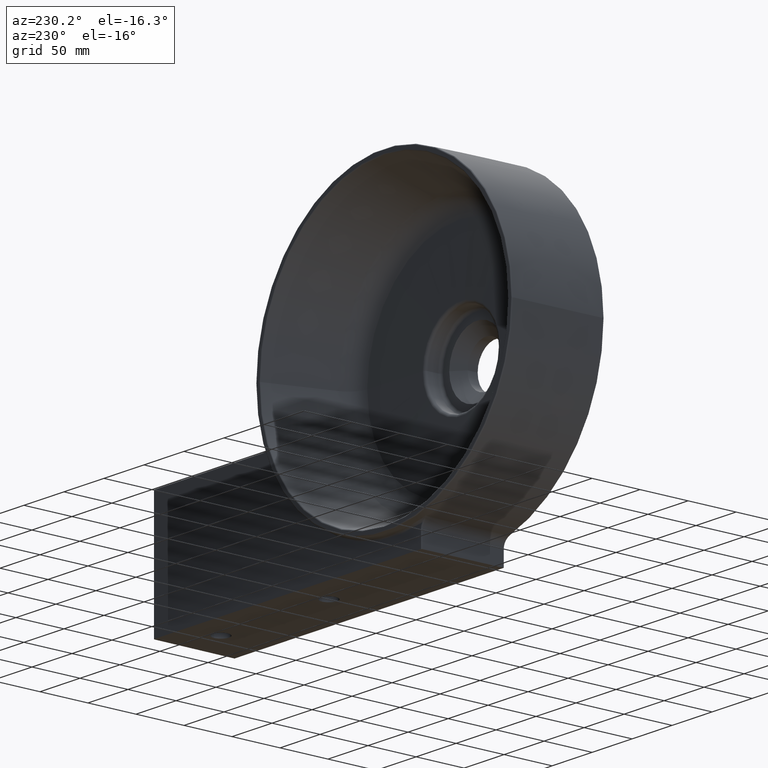
[diagram: clean part render]
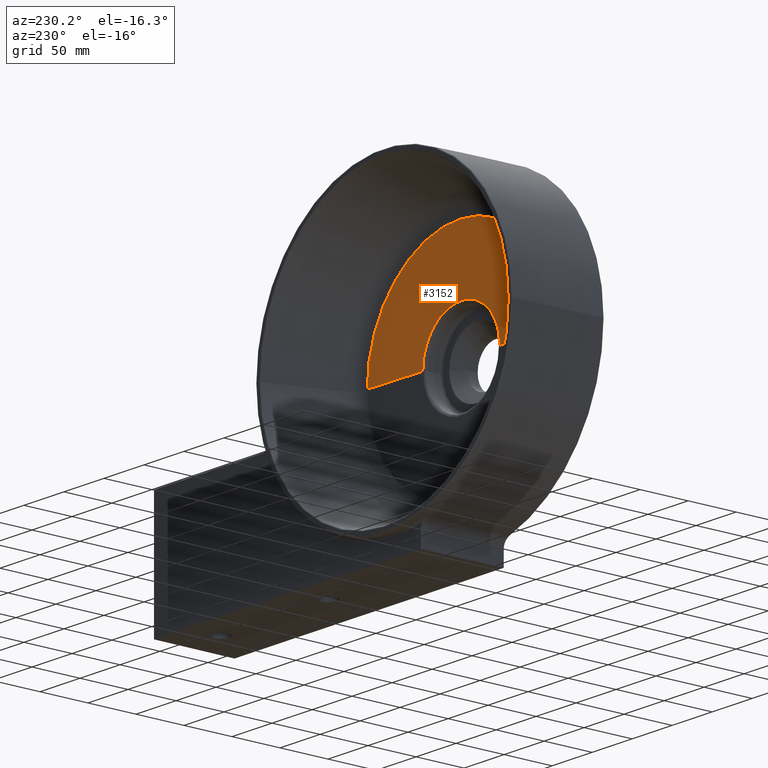
[diagram: same view with one face highlighted and labeled with its STEP entity id]
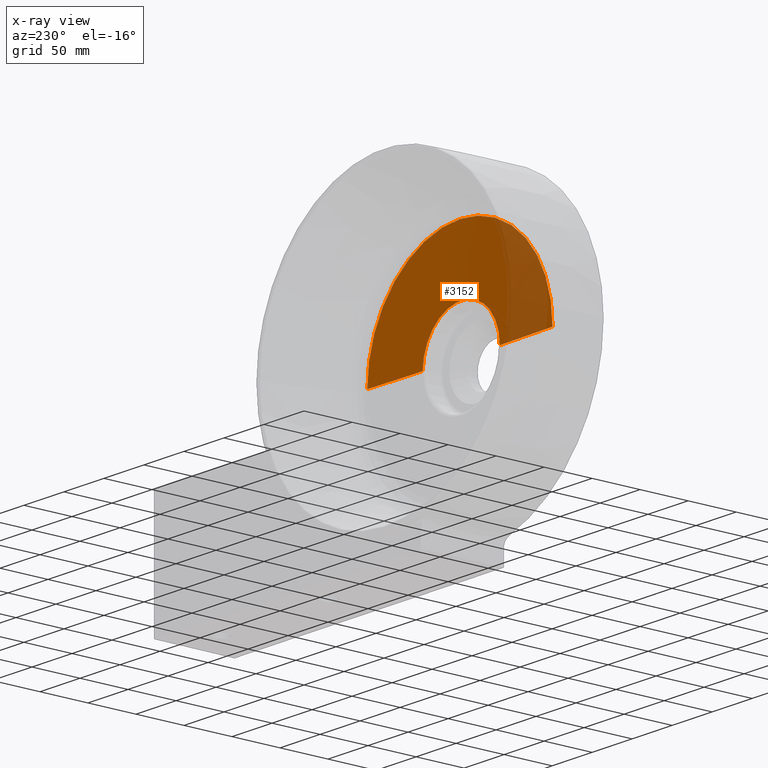
[diagram: x-ray of the same camera — body ghosted, the highlighted face saturated]
A machine part, auxiliary view. The second image highlights one B-rep face of the part: STEP entity #3152.
The next image is the same camera in x-ray: the body ghosted, the highlighted face saturated — about 24% of this face is hidden behind the body in this view.
In plain terms, the highlighted conical surface has half-angle 88.854 deg.
Its self-contained STEP definition (entity closure, byte-faithful):
#30 = CARTESIAN_POINT ( 'NONE',  ( -48.16836135518230577, 36.26575789991628085, 0.0000000000000000000 ) ) ;
#205 = ORIENTED_EDGE ( 'NONE', *, *, #597, .F. ) ;
#294 = EDGE_CURVE ( 'NONE', #2341, #2229, #3728, .T. ) ;
#323 = DIRECTION ( 'NONE',  ( -1.214623636765614367E-16, 1.000000000000000000, -0.0000000000000000000 ) ) ;
#355 = DIRECTION ( 'NONE',  ( 0.9998000599800070942, 0.01999600119960008235, 1.224401943241847489E-16 ) ) ;
#494 = CONICAL_SURFACE ( 'NONE', #1221, 48.16836135518231288, 1.550798992821746269 ) ;
#597 = EDGE_CURVE ( 'NONE', #630, #2229, #2873, .T. ) ;
#630 = VERTEX_POINT ( 'NONE', #2231 ) ;
#678 = ORIENTED_EDGE ( 'NONE', *, *, #3487, .F. ) ;
#750 = AXIS2_PLACEMENT_3D ( 'NONE', #1663, #323, #2554 ) ;
#999 = AXIS2_PLACEMENT_3D ( 'NONE', #1013, #2274, #1967 ) ;
#1013 = CARTESIAN_POINT ( 'NONE',  ( 9.684624439845843926E-15, 37.61758012698156506, 0.0000000000000000000 ) ) ;
#1048 = DIRECTION ( 'NONE',  ( -1.214623636765614367E-16, 1.000000000000000000, -0.0000000000000000000 ) ) ;
#1114 = CARTESIAN_POINT ( 'NONE',  ( 9.848819962815706248E-15, 36.26575789991628795, 0.0000000000000000000 ) ) ;
#1221 = AXIS2_PLACEMENT_3D ( 'NONE', #1114, #1048, #1334 ) ;
#1320 = VERTEX_POINT ( 'NONE', #30 ) ;
#1334 = DIRECTION ( 'NONE',  ( -1.000000000000000000, -1.440550126407962184E-16, 0.0000000000000000000 ) ) ;
#1341 = VECTOR ( 'NONE', #2387, 999.9999999999998863 ) ;
#1439 = ORIENTED_EDGE ( 'NONE', *, *, #3206, .T. ) ;
#1454 = CARTESIAN_POINT ( 'NONE',  ( -48.16836135518230577, 36.26575789991628085, 0.0000000000000000000 ) ) ;
#1500 = LINE ( 'NONE', #1454, #1341 ) ;
#1663 = CARTESIAN_POINT ( 'NONE',  ( 9.848819962815706248E-15, 36.26575789991628795, 0.0000000000000000000 ) ) ;
#1734 = CARTESIAN_POINT ( 'NONE',  ( 115.7594727084467081, 37.61758012698157927, 1.531992514450001495E-14 ) ) ;
#1793 = EDGE_LOOP ( 'NONE', ( #205, #678, #1439, #3836 ) ) ;
#1943 = CIRCLE ( 'NONE', #750, 48.16836135518231288 ) ;
#1947 = CARTESIAN_POINT ( 'NONE',  ( 48.16836135518231998, 36.26575789991629506, 5.898922955379708213E-15 ) ) ;
#1967 = DIRECTION ( 'NONE',  ( -1.000000000000000000, -1.198846840186222324E-16, 0.0000000000000000000 ) ) ;
#2052 = CARTESIAN_POINT ( 'NONE',  ( -115.7594727084466797, 37.61758012698155085, 0.0000000000000000000 ) ) ;
#2229 = VERTEX_POINT ( 'NONE', #1734 ) ;
#2231 = CARTESIAN_POINT ( 'NONE',  ( 48.16836135518231998, 36.26575789991629506, 1.003768486385908482E-14 ) ) ;
#2274 = DIRECTION ( 'NONE',  ( -1.214623636765614367E-16, 1.000000000000000000, -0.0000000000000000000 ) ) ;
#2341 = VERTEX_POINT ( 'NONE', #2052 ) ;
#2387 = DIRECTION ( 'NONE',  ( -0.9998000599800070942, 0.01999600119959983602, 0.0000000000000000000 ) ) ;
#2554 = DIRECTION ( 'NONE',  ( -1.000000000000000000, -1.440550126407962184E-16, 0.0000000000000000000 ) ) ;
#2873 = LINE ( 'NONE', #1947, #3998 ) ;
#2988 = FACE_OUTER_BOUND ( 'NONE', #1793, .T. ) ;
#3152 = ADVANCED_FACE ( 'NONE', ( #2988 ), #494, .F. ) ;
#3206 = EDGE_CURVE ( 'NONE', #1320, #2341, #1500, .T. ) ;
#3487 = EDGE_CURVE ( 'NONE', #1320, #630, #1943, .T. ) ;
#3728 = CIRCLE ( 'NONE', #999, 115.7594727084466939 ) ;
#3836 = ORIENTED_EDGE ( 'NONE', *, *, #294, .T. ) ;
#3998 = VECTOR ( 'NONE', #355, 999.9999999999998863 ) ;